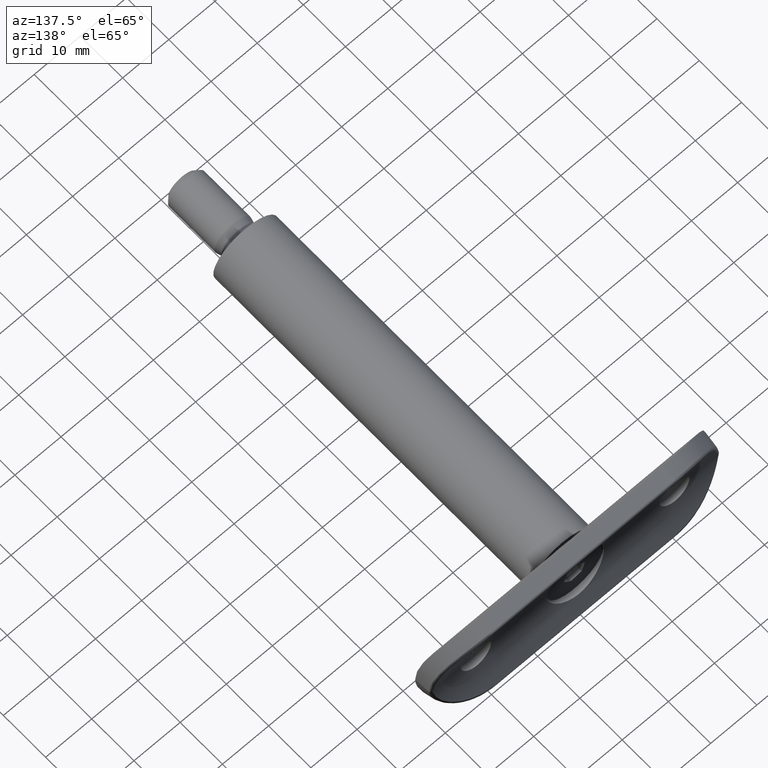
[diagram: clean part render]
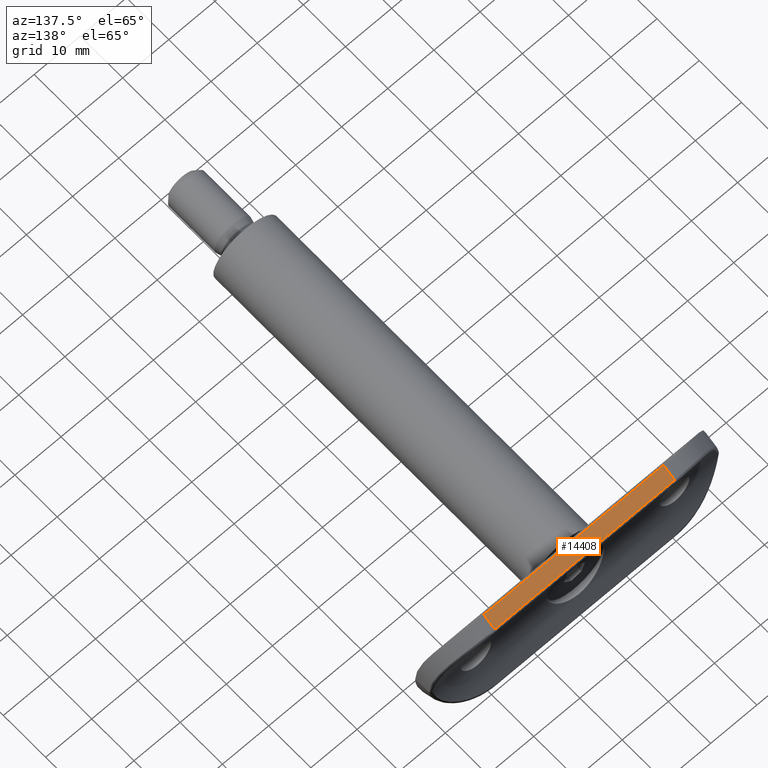
[diagram: same view with one face highlighted and labeled with its STEP entity id]
A machine part, auxiliary view. The second image highlights one B-rep face of the part: STEP entity #14408.
In plain terms, the highlighted planar face has unit normal (0, -0.4858, -0.8741).
Its self-contained STEP definition (entity closure, byte-faithful):
#644 = LINE ( 'NONE', #13702, #4652 ) ;
#883 = PLANE ( 'NONE',  #1389 ) ;
#1389 = AXIS2_PLACEMENT_3D ( 'NONE', #14852, #11459, #5609 ) ;
#1513 = VERTEX_POINT ( 'NONE', #14673 ) ;
#2275 = CARTESIAN_POINT ( 'NONE',  ( 12.00000000000000200, -0.3891176290278198800, 31.50000000000000000 ) ) ;
#4652 = VECTOR ( 'NONE', #5715, 1000.000000000000000 ) ;
#4982 = DIRECTION ( 'NONE',  ( -0.4858299595141711800, 0.8740533453047695200, 0.0000000000000000000 ) ) ;
#5045 = EDGE_LOOP ( 'NONE', ( #6225, #5278, #14362, #9284 ) ) ;
#5128 = VECTOR ( 'NONE', #10371, 1000.000000000000000 ) ;
#5278 = ORIENTED_EDGE ( 'NONE', *, *, #7468, .T. ) ;
#5377 = CARTESIAN_POINT ( 'NONE',  ( 10.53971119023871600, 2.238077944829625700, 19.50000000000000000 ) ) ;
#5609 = DIRECTION ( 'NONE',  ( 0.4858299595141711800, -0.8740533453047695200, 0.0000000000000000000 ) ) ;
#5715 = DIRECTION ( 'NONE',  ( 0.0000000000000000000, 0.0000000000000000000, 1.000000000000000000 ) ) ;
#6062 = VECTOR ( 'NONE', #12123, 1000.000000000000100 ) ;
#6210 = LINE ( 'NONE', #2275, #5128 ) ;
#6225 = ORIENTED_EDGE ( 'NONE', *, *, #15007, .T. ) ;
#6395 = EDGE_CURVE ( 'NONE', #1513, #12022, #6210, .T. ) ;
#6643 = CARTESIAN_POINT ( 'NONE',  ( 12.00000000000000200, -0.3891176290278198800, -19.50000000000000400 ) ) ;
#7468 = EDGE_CURVE ( 'NONE', #8489, #9445, #644, .T. ) ;
#7656 = FACE_OUTER_BOUND ( 'NONE', #5045, .T. ) ;
#8218 = CARTESIAN_POINT ( 'NONE',  ( 12.00000000000000400, -0.3891176290278239900, 19.50000000000000000 ) ) ;
#8489 = VERTEX_POINT ( 'NONE', #11444 ) ;
#9266 = LINE ( 'NONE', #11957, #9815 ) ;
#9284 = ORIENTED_EDGE ( 'NONE', *, *, #6395, .T. ) ;
#9445 = VERTEX_POINT ( 'NONE', #5377 ) ;
#9815 = VECTOR ( 'NONE', #4982, 1000.000000000000100 ) ;
#9968 = EDGE_CURVE ( 'NONE', #9445, #1513, #11857, .T. ) ;
#10371 = DIRECTION ( 'NONE',  ( -0.0000000000000000000, -0.0000000000000000000, -1.000000000000000000 ) ) ;
#11444 = CARTESIAN_POINT ( 'NONE',  ( 10.53971119023871600, 2.238077944829626200, -19.50000000000000400 ) ) ;
#11459 = DIRECTION ( 'NONE',  ( -0.8740533453047696400, -0.4858299595141712400, 0.0000000000000000000 ) ) ;
#11857 = LINE ( 'NONE', #8218, #6062 ) ;
#11957 = CARTESIAN_POINT ( 'NONE',  ( 12.00000000000000200, -0.3891176290278198800, -19.50000000000000400 ) ) ;
#12022 = VERTEX_POINT ( 'NONE', #6643 ) ;
#12123 = DIRECTION ( 'NONE',  ( 0.4858299595141711800, -0.8740533453047695200, -0.0000000000000000000 ) ) ;
#13702 = CARTESIAN_POINT ( 'NONE',  ( 10.53971119023871600, 2.238077944829626600, 19.50000000000000000 ) ) ;
#14362 = ORIENTED_EDGE ( 'NONE', *, *, #9968, .T. ) ;
#14408 = ADVANCED_FACE ( 'NONE', ( #7656 ), #883, .F. ) ;
#14673 = CARTESIAN_POINT ( 'NONE',  ( 12.00000000000000200, -0.3891176290278198800, 19.50000000000000000 ) ) ;
#14852 = CARTESIAN_POINT ( 'NONE',  ( 12.00000000000000200, -0.3891176290278198800, 31.50000000000000000 ) ) ;
#15007 = EDGE_CURVE ( 'NONE', #12022, #8489, #9266, .T. ) ;